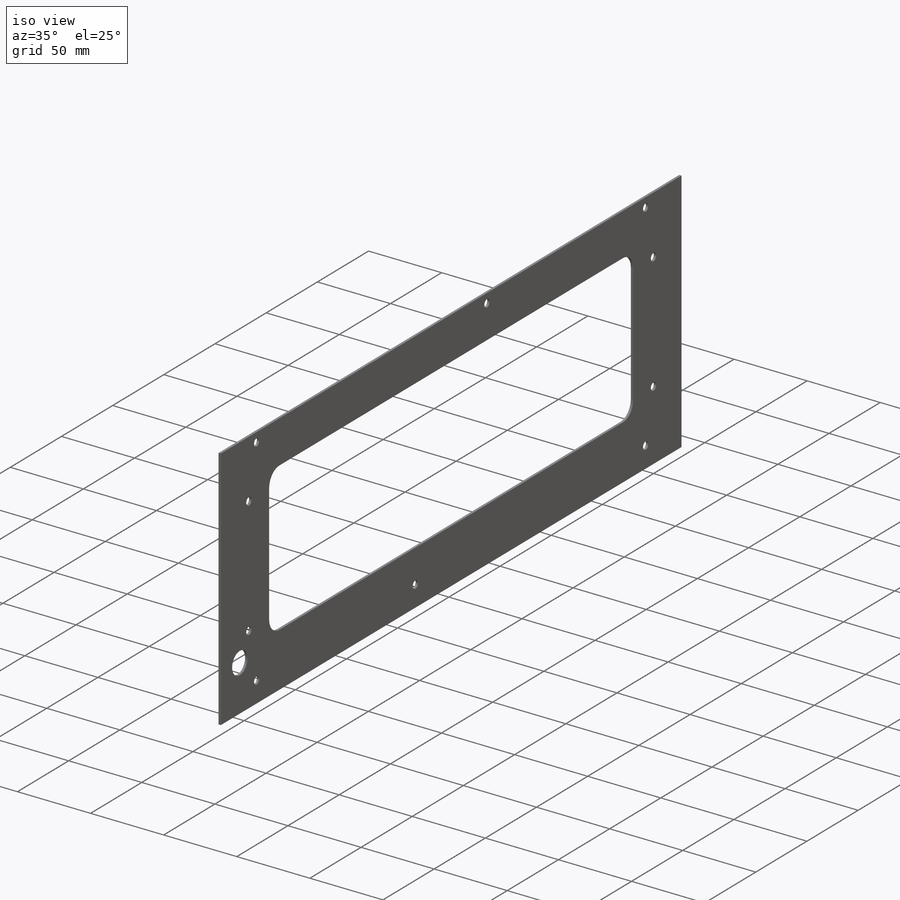
[diagram: iso view]
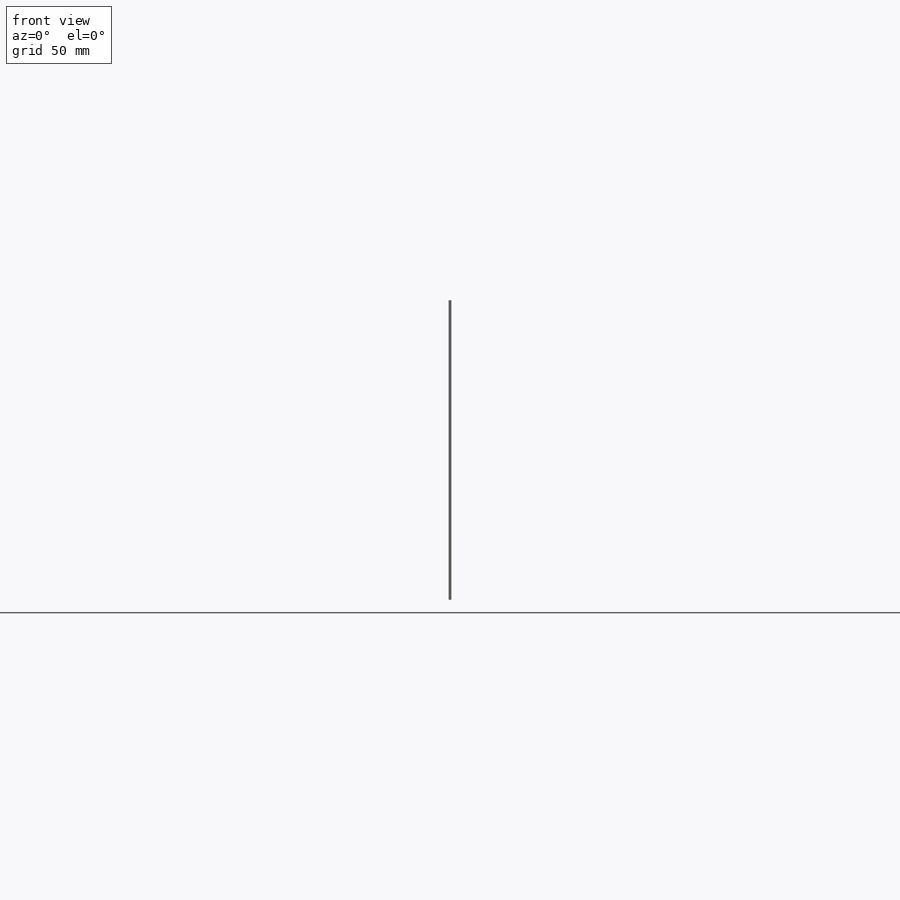
[diagram: front view]
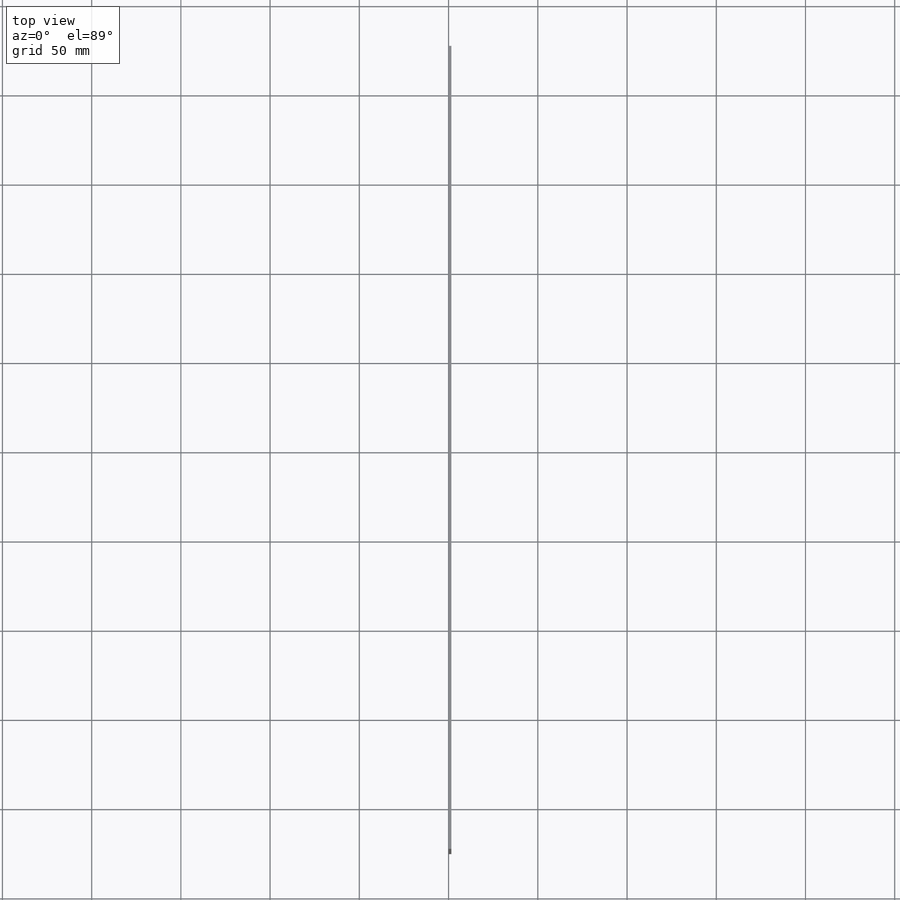
[diagram: top view]
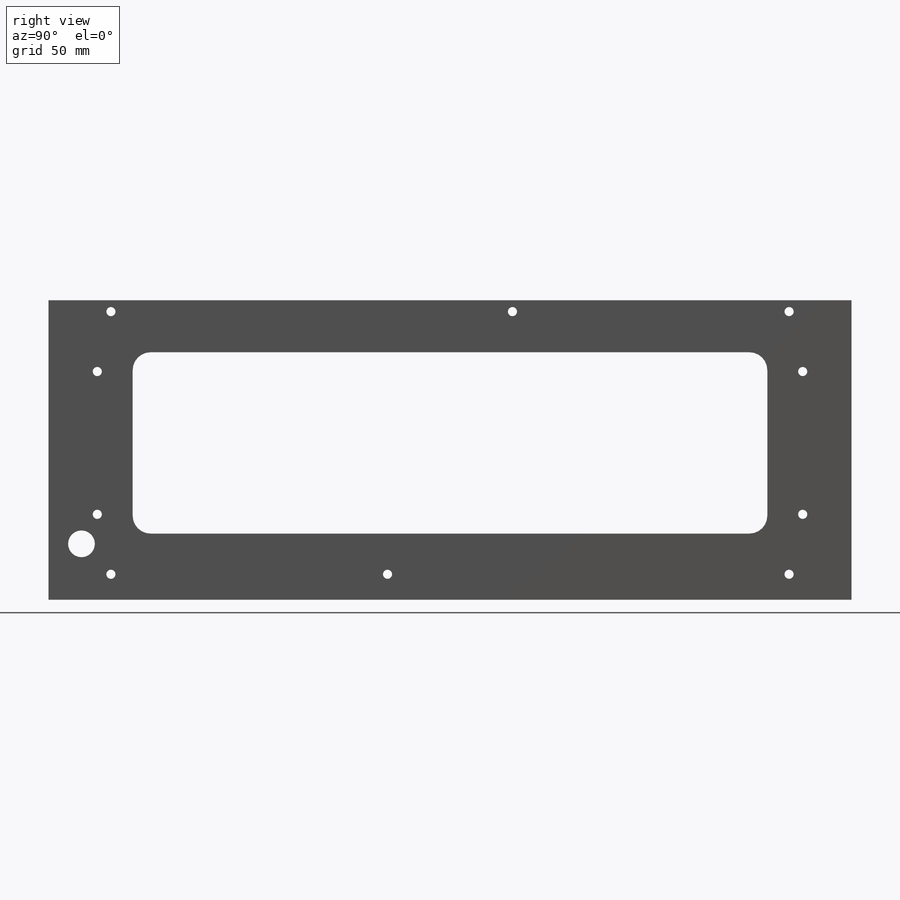
[diagram: right view]
SOLIDWORKS PART (.sldprt)
format: sldprt  version: not decoded by parser v0  size: 242,176 bytes
history: native  units: mm
features: sketch x7, hole x2, cut_extrude x2, mirror x2, material x1, extrude x1, fillet x1 (+11 scaffold rows collapsed)
feature tree (27):
  scaffold x11  (default folders/planes/origin — collapsed)
  material  "6061-T6 (SS)"
  sketch  "Sketch1"  dims[D1=380.0mm D2=~147.182217mm D3=6.3627mm D4=14.2875mm D5=450.0mm D6=35.0mm]
  extrude  "Boss-Extrude1"  Depth=1.6002mm
  hole  "#10 Clearance Hole1"  Diameter=5.1054mm Depth=129.53mm
  sketch  "Sketch3"
  sketch  "Sketch2"  dims[hole-wizard template sketch: 47 standard entries collapsed; hole parameters kept: c15.Hole Depth=129.53mm c15.D3=~14.816244mm c15.Drill Angle=118.0deg]
  sketch  "Sketch4"  dims[D1=15.0mm D2=~31.346508mm D3=18.5mm]
  cut_extrude  "Cut-Extrude1"  [1 undecoded]
  sketch  "Sketch5"  dims[D1=355.6mm D2=101.6mm]
  cut_extrude  "Cut-Extrude2"  [1 undecoded]
  fillet  "Fillet1"  Radius=10mm
  hole  "#10 Clearance Hole2"  Diameter=5.1054mm Depth=1.6002mm
  sketch  "Sketch7"  dims[D1=197.627mm D2=40.0mm]
  sketch  "Sketch6"  dims[hole-wizard template sketch: 60 standard entries collapsed; hole parameters kept: c18.Thru Hole Depth=1.6002mm]
  mirror  "Mirror1"
  mirror  "Mirror2"
decode coverage: 10 of 15 modeling features carry decoded parameters
note: ~ marks probable driven/reference dimensions
note: 2 parameter values undecoded
note: suppression state not decoded; provenance and decode notes live in map.json
